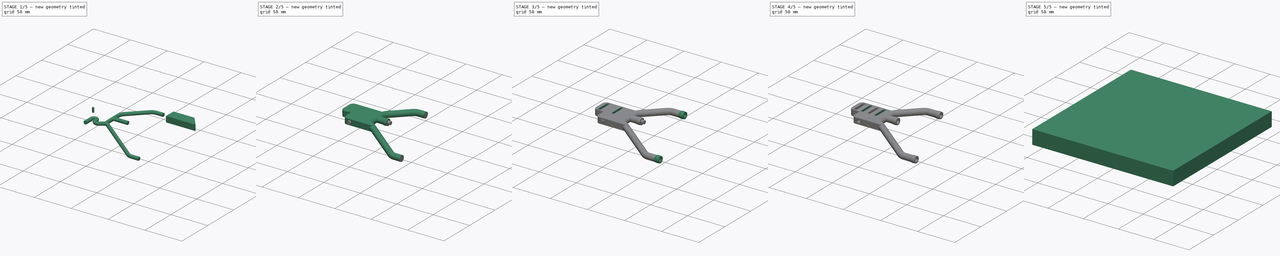
[diagram: build sequence overview — one tinted view per stage of 5, left to right]
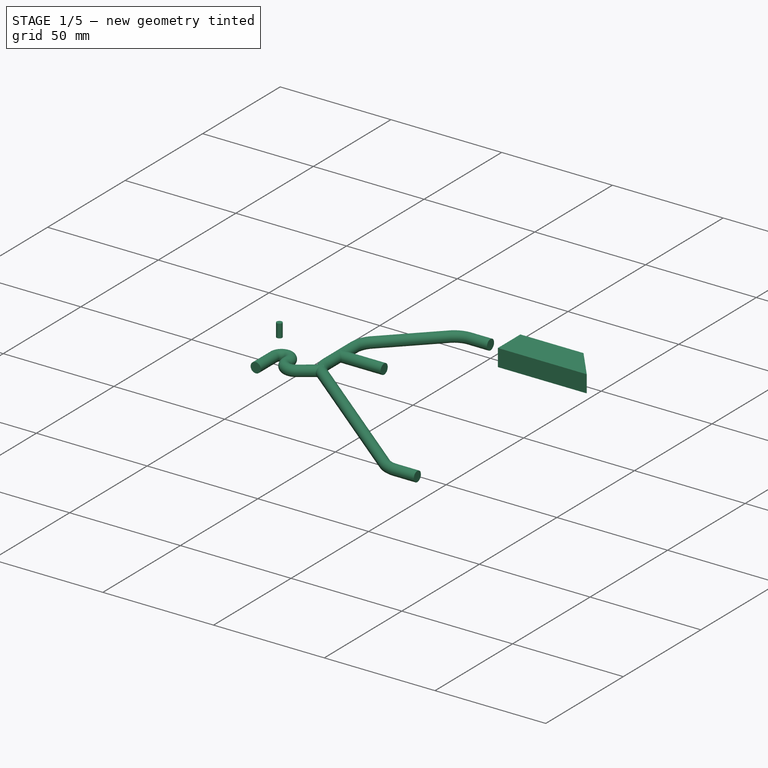
[diagram: stage 1 of 5 — iso view after this stage's code; geometry added in this stage tinted green]
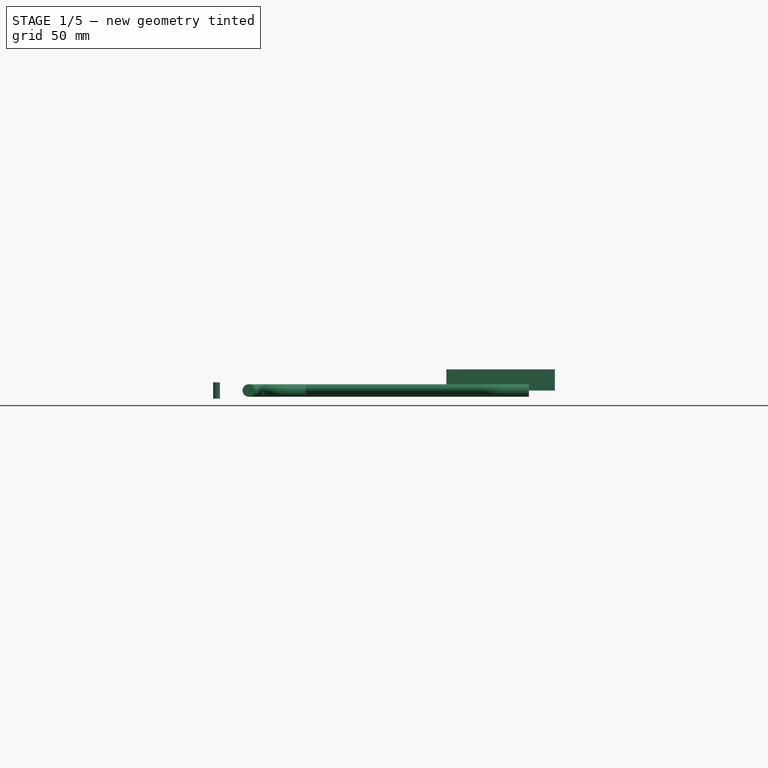
[diagram: stage 1 of 5 — front view after this stage's code; geometry added in this stage tinted green]
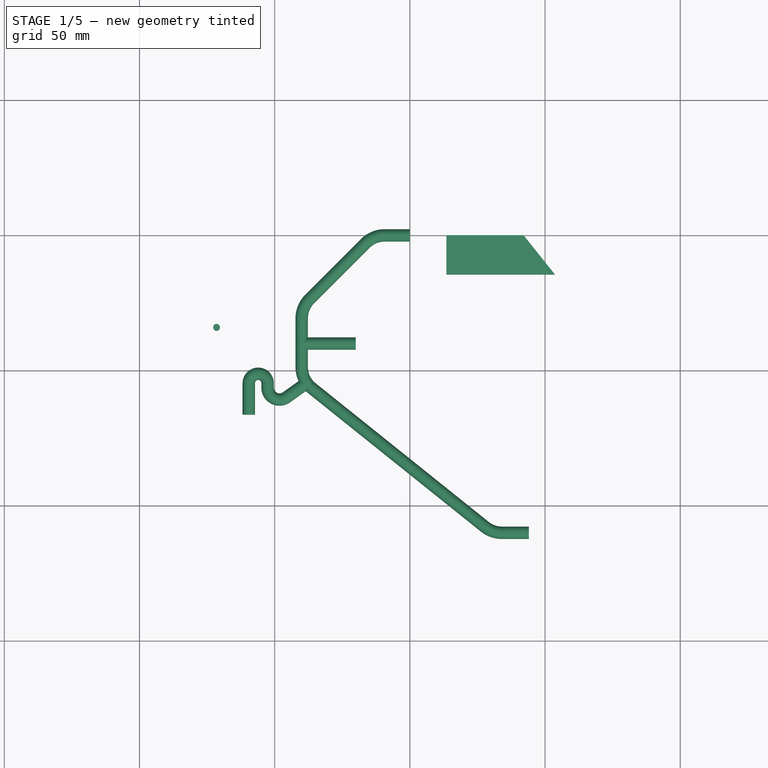
[diagram: stage 1 of 5 — top view after this stage's code; geometry added in this stage tinted green]
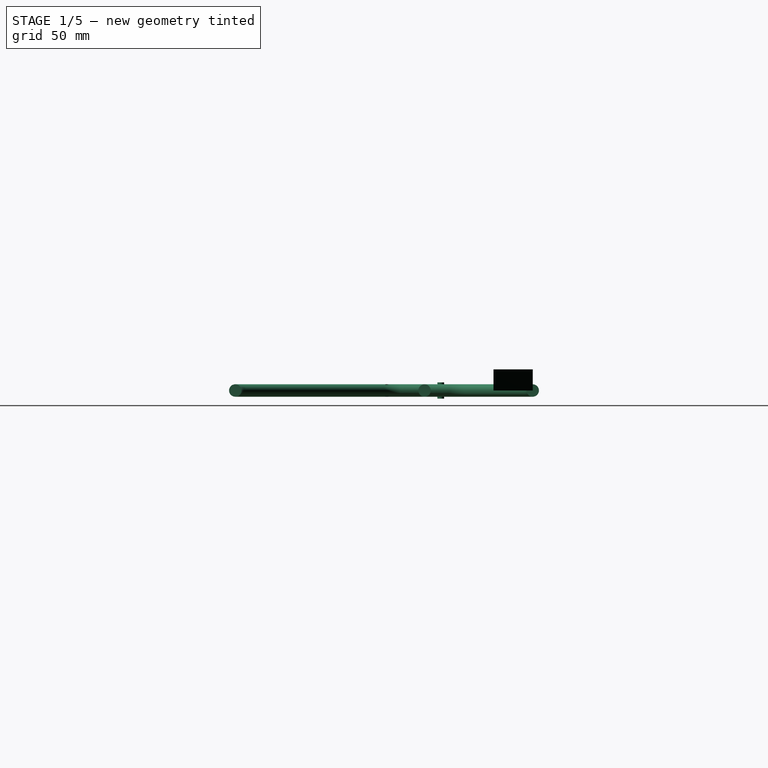
[diagram: stage 1 of 5 — right view after this stage's code; geometry added in this stage tinted green]
FCSTD DOCUMENT  (FreeCAD 0.18R4 (GitTag))
Label: new_my_track_ir_v2
License: CreativeCommons Attribution-ShareAlike
LicenseURL: http://creativecommons.org/licenses/by-sa/4.0/
objects: Sketcher::SketchObject×15, Part::Cut×11, Part::Cylinder×7, Part::MultiFuse×7, PartDesign::Body×5, Part::Box×5, Part::Feature×4, PartDesign::Revolution×3, Part::Sweep×3, Part::Fillet×3, Part::FeaturePython×3, Part::Extrusion×1, App::DocumentObjectGroup×1
note: 70 computed .brp shape members not serialized (recipe doc carries the construction recipe); baked Part::Feature solids carry a one-line shape summary decoded from their .brp

FEATURE [Part::Box] Box003  label="Cube003"
  AttacherType = Attacher::AttachEngine3D
  Height = 7.8
  Length = 38
  Placement = pos=(42,0,0) rot=(0,0,-1;0.895354rad)
  Width = 22.5
FEATURE [Part::Box] Box002  label="Cube002"
  AttacherType = Attacher::AttachEngine3D
  Height = 7.8
  Length = 47
  Placement = pos=(13.5,-14.5,0) rot=(0,0,1;0rad)
  Width = 14.5
FEATURE [Part::Cut] Cut005
  Base = -> Box002
  Tool = -> Box003
FEATURE [Sketcher::SketchObject] Sketch008  label="tubo_bloque"
  MapMode = 5
  Placement = pos=(0,0,0) rot=(1,0,0;1.5708rad)
  Support = -> [XZ_Plane005]
  sketch-geometry (1):
    g0: Circle CenterX=-61 CenterY=0 CenterZ=0 NormalX=0 NormalY=0 NormalZ=1 AngleXU=0 Radius=1.6
  constraints (2):
    c: PointOnObject(g0,g-1)
    c: Radius(g0) = 1.6
FEATURE [Sketcher::SketchObject] Sketch007  label="trayectoria_bloque"
  MapMode = 5
  Support = -> [XY_Plane005]
  sketch-geometry (5):
    g0: LineSegment StartX=-61.2464 StartY=-3.45675 StartZ=0 EndX=-61.2464 EndY=7.74325 EndZ=0
    g1: LineSegment StartX=-52.4464 StartY=7.24325 StartZ=0 EndX=-52.4464 EndY=7.74325 EndZ=0
    g2: ArcOfCircle CenterX=-56.8464 CenterY=7.74325 CenterZ=0 NormalX=0 NormalY=0 NormalZ=1 AngleXU=0 Radius=4.4 StartAngle=0 EndAngle=3.14159
    g3: ArcOfCircle CenterX=-48.0464 CenterY=7.24325 CenterZ=0 NormalX=0 NormalY=0 NormalZ=1 AngleXU=0 Radius=4.4 StartAngle=3.14159 EndAngle=5.1589
    g4: LineSegment [constr] StartX=-46.1464 StartY=3.27462 StartZ=0 EndX=-33.5553 EndY=3.27462 EndZ=0
  constraints (14):
    c: Vertical(g0)
    c: Vertical(g1)
    c: Coincident(g2,g1)
    c: Radius(g2) = 4.4
    c: Coincident(g0,g2)
    c: DistanceY(g0,g1) = 0
    c: DistanceY(g0,g2) = 0
    c: Radius(g3) = 4.4
    c: Tangent(g3,g1) = 1.5708
    c: DistanceY(g1,g1) = 0.5
    c: DistanceX(g1,g3) = 6.3
    c: Coincident(g4,g3)
    c: Horizontal(g4)
    c: DistanceY(g0,g0) = 11.2
FEATURE [PartDesign::Body] Body008
  Group = -> [Sketch007,Sketch008]
  Origin = -> Origin005
FEATURE [Sketcher::SketchObject] Sketch009  label="trayectoria_bloque001"
  ExternalGeometry = -> [Sketch001]
  MapMode = 5
  Support = -> [XY_Plane001]
  sketch-geometry (5):
    g0: ArcOfCircle CenterX=-56.1035 CenterY=-54.6759 CenterZ=0 NormalX=0 NormalY=0 NormalZ=1 AngleXU=0 Radius=3.47958 StartAngle=-9e-16 EndAngle=3.14159
    g1: LineSegment StartX=-37.3587 StartY=-53.9759 StartZ=0 EndX=-45.6666 EndY=-59.9096 EndZ=0
    g2: LineSegment StartX=-52.6239 StartY=-54.6759 StartZ=0 EndX=-52.6239 EndY=-56.3291 EndZ=0
    g3: ArcOfCircle CenterX=-48.2239 CenterY=-56.3291 CenterZ=0 NormalX=0 NormalY=0 NormalZ=1 AngleXU=0 Radius=4.4 StartAngle=3.14159 EndAngle=5.3326
    g4: LineSegment StartX=-59.5831 StartY=-66.2921 StartZ=0 EndX=-59.5831 EndY=-54.6759 EndZ=0
  constraints (9):
    c: Vertical(g2)
    c: DistanceY(g0,g1) = 0.7
    c: Perpendicular(g-3,g1)
    c: Tangent(g3,g1) = 1.5708
    c: Radius(g3) = 4.4
    c: Tangent(g2,g0) = 1.5708
    c: Vertical(g4)
    c: Tangent(g4,g0) = 1.5708
    c: Tangent(g2,g3) = -1.5708
FEATURE [PartDesign::Body] Body001
  Group = -> [Sketch001,Sketch002,Sketch003,Sketch009]
  Origin = -> Origin001
FEATURE [Sketcher::SketchObject] Sketch012  label="circulo_interno001"
  MapMode = 5
  Placement = pos=(0,0,0) rot=(0.57735,0.57735,0.57735;2.0944rad)
  Support = -> [YZ_Plane006]
  sketch-geometry (1):
    g0: Circle CenterX=0 CenterY=0 CenterZ=0 NormalX=0 NormalY=0 NormalZ=1 AngleXU=0 Radius=2.3
  constraints (2):
    c: Coincident(g0,g-1)
    c: Radius(g0) = 2.3
FEATURE [Sketcher::SketchObject] Sketch013  label="trayectoria001"
  MapMode = 5
  Support = -> [XY_Plane006]
  sketch-geometry (10):
    g0: LineSegment StartX=-40 StartY=-30.63 StartZ=0 EndX=-40 EndY=-40 EndZ=0
    g1: LineSegment StartX=-40 StartY=-40 StartZ=0 EndX=-40 EndY=-48.72 EndZ=0
    g2: LineSegment StartX=0 StartY=0 StartZ=0 EndX=-9.37 EndY=-0.00106787 EndZ=0
    g3: LineSegment StartX=34.01 StartY=-110 StartZ=0 EndX=44 EndY=-110 EndZ=0
    g4: LineSegment StartX=-16.44 StartY=-2.93 StartZ=0 EndX=-37.07 EndY=-23.56 EndZ=0
    g5: LineSegment StartX=-36.25 StartY=-56.5263 StartZ=0 EndX=27.75 EndY=-107.8 EndZ=0
    g6: ArcOfCircle CenterX=-9.36893 CenterY=-10.0011 CenterZ=0 NormalX=0 NormalY=0 NormalZ=1 AngleXU=0 Radius=10 StartAngle=1.5709 EndAngle=2.35619
    g7: ArcOfCircle CenterX=-30 CenterY=-30.6321 CenterZ=0 NormalX=0 NormalY=0 NormalZ=1 AngleXU=0 Radius=10 StartAngle=2.35604 EndAngle=3.14138
    g8: ArcOfCircle CenterX=-30 CenterY=-48.7201 CenterZ=0 NormalX=0 NormalY=0 NormalZ=1 AngleXU=0 Radius=10 StartAngle=3.14158 EndAngle=4.03726
    g9: ArcOfCircle CenterX=34.0078 CenterY=-100 CenterZ=0 NormalX=0 NormalY=0 NormalZ=1 AngleXU=0 Radius=10 StartAngle=4.03626 EndAngle=4.71261
  constraints (34):
    c: Vertical(g0)
    c: DistanceX(g0,g-1) = 40
    c: DistanceY(g0,g-1) = 40
    c: Vertical(g1)
    c: Coincident(g0,g1)
    c: Coincident(g2,g-1)
    c: Horizontal(g3)
    c: DistanceX(g-1,g3) = 44
    c: DistanceY(g3,g-1) = 110
    c: Angle(g4,g-1) = 2.35619
    c: Angle(g5,g1) = 2.24624
    c: Radius(g6) = 10
    c: Tangent(g6,g4,g6) = -1.5708
    c: Coincident(g4,g6)
    c: Coincident(g2,g6)
    c: DistanceX(g2,g2) = 9.37
    c: DistanceX(g4,g2) = 7.07
    c: Radius(g7) = 10
    c: Coincident(g4,g7)
    c: Coincident(g0,g7)
    c: DistanceX(g0,g4) = 2.93
    c: DistanceY(g0,g4) = 7.07
    c: DistanceY(g0,g4) = 16.44
    c: Radius(g8) = 10
    c: Coincident(g1,g8)
    c: Coincident(g5,g8)
    c: DistanceY(g1,g0) = 8.72
    c: DistanceX(g1,g5) = 3.75
    c: Radius(g9) = 10
    c: Coincident(g5,g9)
    c: Coincident(g3,g9)
    c: DistanceX(g3,g3) = 9.99
    c: DistanceY(g3,g5) = 2.2
    c: DistanceX(g5,g3) = 6.26
FEATURE [Part::Sweep] Sweep003  label="tubo_fino_2"
  Frenet = false
  Sections = -> [Sketch012]
  Solid = true
  Spine = -> Sketch013
  Transition = 1
FEATURE [Part::Cylinder] Cylinder001  label="tubito_fino_medio"
  Angle = 360
  AttacherType = Attacher::AttachEngine3D
  Height = 20
  Placement = pos=(-40,-40,0) rot=(0,1,0;1.5708rad)
  Radius = 2.3
FEATURE [Sketcher::SketchObject] Sketch019  label="circulo_interno_bloque"
  MapMode = 7
  Placement = pos=(-59.5831,-66.2921,0) rot=(1,0,0;1.5708rad)
  Support = -> [Sketch009]
  sketch-geometry (1):
    g0: Circle CenterX=0 CenterY=0 CenterZ=0 NormalX=0 NormalY=0 NormalZ=1 AngleXU=0 Radius=2.3
  constraints (2):
    c: Coincident(g0,g-1)
    c: Radius(g0) = 2.3
FEATURE [Part::Sweep] Sweep004  label="tubo_interno_chico_bloque"
  Frenet = false
  Sections = -> [Sketch019]
  Solid = true
  Spine = -> Sketch009
  Transition = 1
FEATURE [Part::MultiFuse] Fusion006002005  label="tubos_internos_3_de_4_6_mm"
  Shapes = -> [Sweep004,Cylinder001,Sweep003]
FEATURE [Part::Cylinder] Cylinder002  label="Cylinder001"
  Angle = 360
  AttacherType = Attacher::AttachEngine3D
  Height = 6
  Placement = pos=(-71.5,-34,-3) rot=(0,0,1;0rad)
  Radius = 1.25
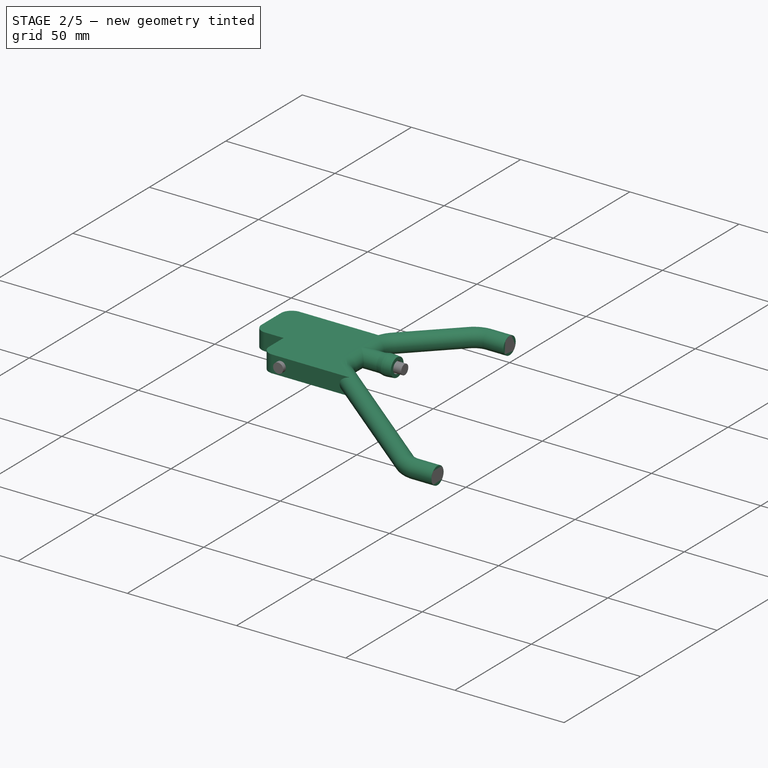
[diagram: stage 2 of 5 — iso view after this stage's code; geometry added in this stage tinted green]
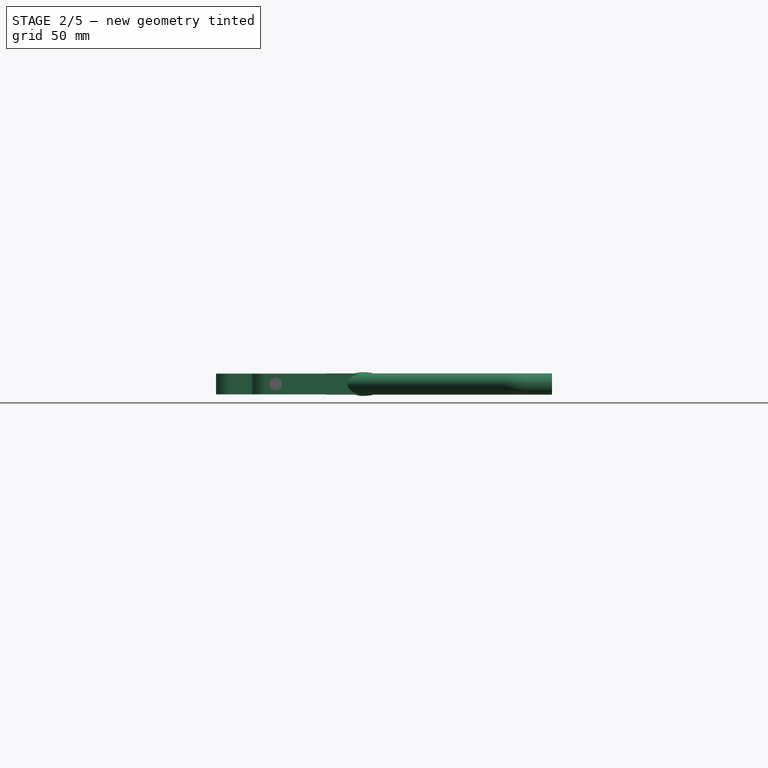
[diagram: stage 2 of 5 — front view after this stage's code; geometry added in this stage tinted green]
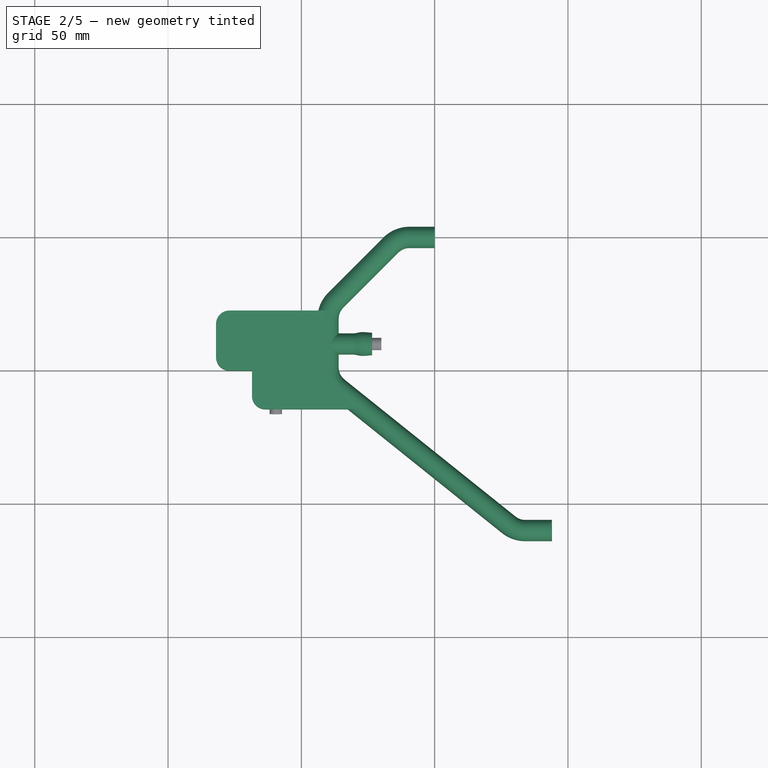
[diagram: stage 2 of 5 — top view after this stage's code; geometry added in this stage tinted green]
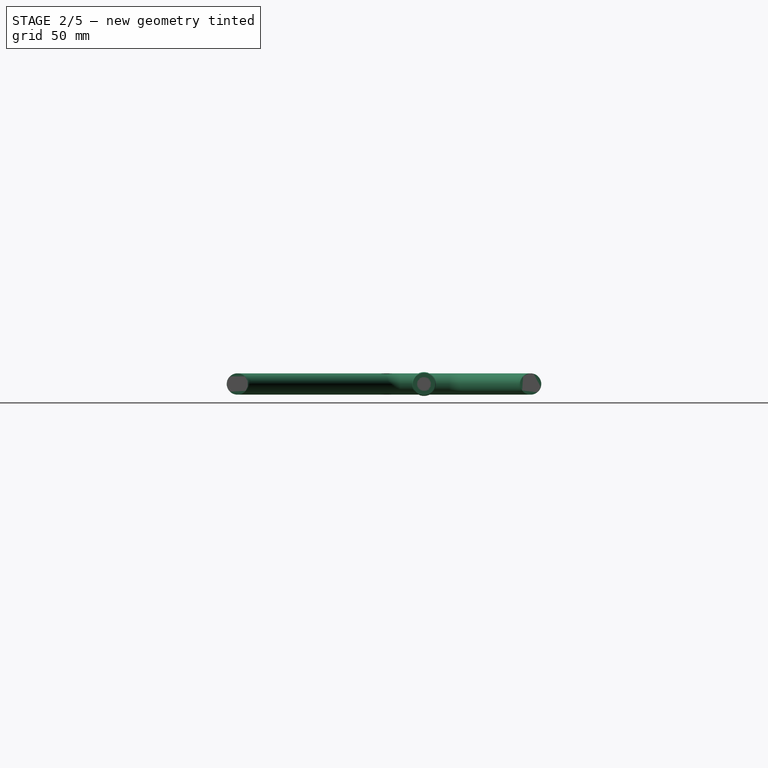
[diagram: stage 2 of 5 — right view after this stage's code; geometry added in this stage tinted green]
FEATURE [Sketcher::SketchObject] Sketch003  label="circulo_interno"
  MapMode = 5
  Placement = pos=(0,0,0) rot=(0.57735,0.57735,0.57735;2.0944rad)
  Support = -> [YZ_Plane001]
  sketch-geometry (1):
    g0: Circle CenterX=0 CenterY=0 CenterZ=0 NormalX=0 NormalY=0 NormalZ=1 AngleXU=0 Radius=2.3
  constraints (2):
    c: Coincident(g0,g-1)
    c: Radius(g0) = 2.3
FEATURE [Sketcher::SketchObject] Sketch001  label="trayectoria"
  MapMode = 5
  Support = -> [XY_Plane001]
  sketch-geometry (10):
    g0: LineSegment StartX=-40 StartY=-30.63 StartZ=0 EndX=-40 EndY=-40 EndZ=0
    g1: LineSegment StartX=-40 StartY=-40 StartZ=0 EndX=-40 EndY=-48.72 EndZ=0
    g2: LineSegment StartX=0 StartY=0 StartZ=0 EndX=-9.37 EndY=-0.00106787 EndZ=0
    g3: LineSegment StartX=34.01 StartY=-110 StartZ=0 EndX=44 EndY=-110 EndZ=0
    g4: LineSegment StartX=-16.44 StartY=-2.93 StartZ=0 EndX=-37.07 EndY=-23.56 EndZ=0
    g5: LineSegment StartX=-36.25 StartY=-56.5263 StartZ=0 EndX=27.75 EndY=-107.8 EndZ=0
    g6: ArcOfCircle CenterX=-9.36893 CenterY=-10.0011 CenterZ=0 NormalX=0 NormalY=0 NormalZ=1 AngleXU=0 Radius=10 StartAngle=1.5709 EndAngle=2.35619
    g7: ArcOfCircle CenterX=-30 CenterY=-30.6321 CenterZ=0 NormalX=0 NormalY=0 NormalZ=1 AngleXU=0 Radius=10 StartAngle=2.35604 EndAngle=3.14138
    g8: ArcOfCircle CenterX=-30 CenterY=-48.7201 CenterZ=0 NormalX=0 NormalY=0 NormalZ=1 AngleXU=0 Radius=10 StartAngle=3.14158 EndAngle=4.03726
    g9: ArcOfCircle CenterX=34.0078 CenterY=-100 CenterZ=0 NormalX=0 NormalY=0 NormalZ=1 AngleXU=0 Radius=10 StartAngle=4.03626 EndAngle=4.71261
  constraints (34):
    c: Vertical(g0)
    c: DistanceX(g0,g-1) = 40
    c: DistanceY(g0,g-1) = 40
    c: Vertical(g1)
    c: Coincident(g0,g1)
    c: Coincident(g2,g-1)
    c: Horizontal(g3)
    c: DistanceX(g-1,g3) = 44
    c: DistanceY(g3,g-1) = 110
    c: Angle(g4,g-1) = 2.35619
    c: Angle(g5,g1) = 2.24624
    c: Radius(g6) = 10
    c: Tangent(g6,g4,g6) = -1.5708
    c: Coincident(g4,g6)
    c: Coincident(g2,g6)
    c: DistanceX(g2,g2) = 9.37
    c: DistanceX(g4,g2) = 7.07
    c: Radius(g7) = 10
    c: Coincident(g4,g7)
    c: Coincident(g0,g7)
    c: DistanceX(g0,g4) = 2.93
    c: DistanceY(g0,g4) = 7.07
    c: DistanceY(g0,g4) = 16.44
    c: Radius(g8) = 10
    c: Coincident(g1,g8)
    c: Coincident(g5,g8)
    c: DistanceY(g1,g0) = 8.72
    c: DistanceX(g1,g5) = 3.75
    c: Radius(g9) = 10
    c: Coincident(g5,g9)
    c: Coincident(g3,g9)
    c: DistanceX(g3,g3) = 9.99
    c: DistanceY(g3,g5) = 2.2
    c: DistanceX(g5,g3) = 6.26
FEATURE [PartDesign::Body] Body  label="cabezal1"
  Group = -> [Sketch,Revolution]
  Origin = -> Origin
  Placement = pos=(-4,0,0) rot=(0,0,1;0rad)
  Tip = -> Revolution
FEATURE [Part::Sweep] Sweep  label="tubo_grueso"
  Frenet = false
  Sections = -> [Sketch002]
  Solid = true
  Spine = -> Sketch001
  Transition = 1
FEATURE [Sketcher::SketchObject] Sketch004
  MapMode = 5
  Support = -> [XY_Plane002]
  sketch-geometry (11):
    g0: LineSegment StartX=0 StartY=2.3 StartZ=0 EndX=6.25 EndY=2.3 EndZ=0
    g1: LineSegment StartX=6.25 StartY=2.3 StartZ=0 EndX=6.25 EndY=3.2 EndZ=0
    g2: LineSegment StartX=6.25 StartY=3.2 StartZ=0 EndX=7.55 EndY=3.2 EndZ=0
    g3: LineSegment StartX=7.55 StartY=3.2 StartZ=0 EndX=7.55 EndY=2.65 EndZ=0
    g4: LineSegment StartX=7.55 StartY=2.65 StartZ=0 EndX=10.55 EndY=2.65 EndZ=0
    g5: LineSegment StartX=10.55 StartY=2.65 StartZ=0 EndX=10.55 EndY=4.2 EndZ=0
    g6: LineSegment StartX=10.55 StartY=4.2 StartZ=0 EndX=7.55 EndY=4.47 EndZ=0
    g7: LineSegment StartX=7.55 StartY=4.47 StartZ=0 EndX=6.25 EndY=4.47 EndZ=0
    g8: LineSegment StartX=6.25 StartY=4.47 StartZ=0 EndX=1.25 EndY=3.47 EndZ=0
    g9: LineSegment StartX=1.25 StartY=3.47 StartZ=0 EndX=0 EndY=3.47 EndZ=0
    g10: LineSegment StartX=0 StartY=3.47 StartZ=0 EndX=0 EndY=2.3 EndZ=0
  constraints (33):
    c: PointOnObject(g0,g-2)
    c: Horizontal(g0)
    c: DistanceX(g0,g0) = 6.25
    c: DistanceY(g-1,g0) = 2.3
    c: Coincident(g1,g0)
    c: Vertical(g1)
    c: DistanceY(g1,g1) = 0.9
    c: Coincident(g2,g1)
    c: Horizontal(g2)
    c: DistanceX(g2,g2) = 1.3
    c: Coincident(g3,g2)
    c: Vertical(g3)
    c: DistanceY(g3,g3) = 0.55
    c: Horizontal(g4)
    c: DistanceX(g4,g4) = 3
    c: Coincident(g3,g4)
    c: Coincident(g5,g4)
    c: Vertical(g5)
    c: DistanceY(g5,g5) = 1.55
    c: Coincident(g6,g5)
    c: DistanceX(g6,g5) = 3
    c: DistanceY(g5,g6) = 0.27
    c: Coincident(g7,g6)
    c: Horizontal(g7)
    c: DistanceX(g7,g7) = 1.3
    c: Coincident(g8,g7)
    c: DistanceX(g8,g8) = 5
    c: DistanceY(g8,g8) = 1
    c: Coincident(g9,g8)
    c: PointOnObject(g9,g-2)
    c: Horizontal(g9)
    c: Coincident(g10,g9)
    c: Coincident(g10,g0)
FEATURE [PartDesign::Revolution] Revolution001
  Angle = 360
  Axis = (1,0,0)
  Base = (0,0,0)
  Profile = -> Sketch004
  ReferenceAxis = -> X_Axis002
FEATURE [PartDesign::Body] Body003  label="cabezal003"
  Group = -> [Sketch005,Revolution002]
  Origin = -> Origin003
  Placement = pos=(40,-110,0) rot=(0,0,1;0rad)
  Tip = -> Revolution002
FEATURE [Part::Cylinder] Cylinder
  Angle = 360
  AttacherType = Attacher::AttachEngine3D
  Height = 10
  Placement = pos=(-39.98,-40,0) rot=(0,1,0;1.5708rad)
  Radius = 3.99
FEATURE [Part::MultiFuse] Fusion
  Shapes = -> [Body002,Cylinder]
FEATURE [Part::Box] Box004  label="Cube004"
  AttacherType = Attacher::AttachEngine3D
  Height = 7.8
  Length = 42
  Width = 22.5
FEATURE [Part::Fillet] Fillet
  Base = -> Box004
  Edges = 1 edges r=5: [Edge3]
FEATURE [Part::Fillet] Fillet001
  Base = -> Fillet
  Edges = 1 edges r=5: [Edge3]
FEATURE [Part::Fillet] Fillet002
  Base = -> Cut005
  Edges = 1 edges r=5: [Edge1]
FEATURE [Part::MultiFuse] Fusion007  label="bloque"
  Placement = pos=(-82,-50,-3.9) rot=(0,0,1;0rad)
  Shapes = -> [Fillet001,Fillet002]
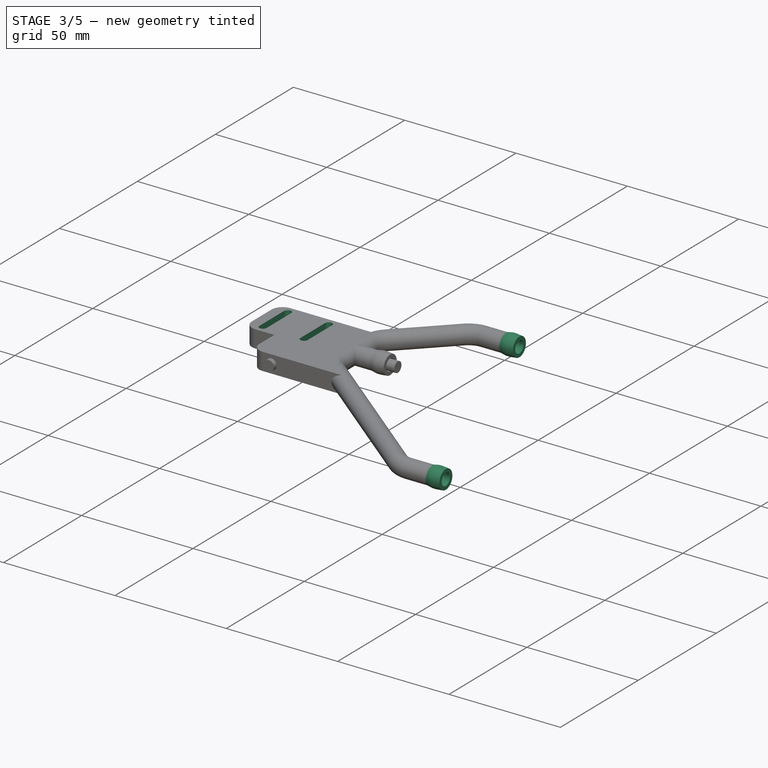
[diagram: stage 3 of 5 — iso view after this stage's code; geometry added in this stage tinted green]
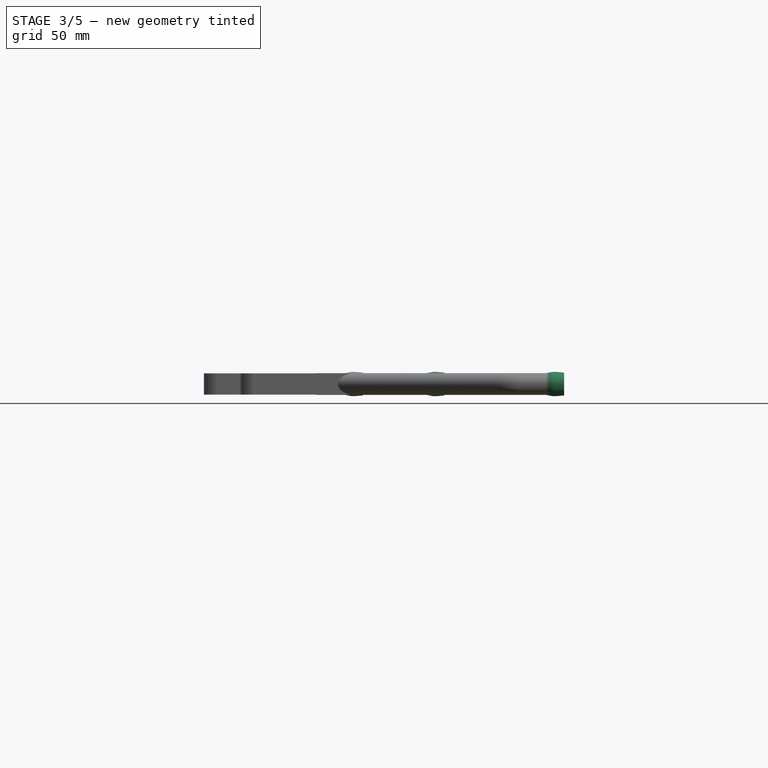
[diagram: stage 3 of 5 — front view after this stage's code; geometry added in this stage tinted green]
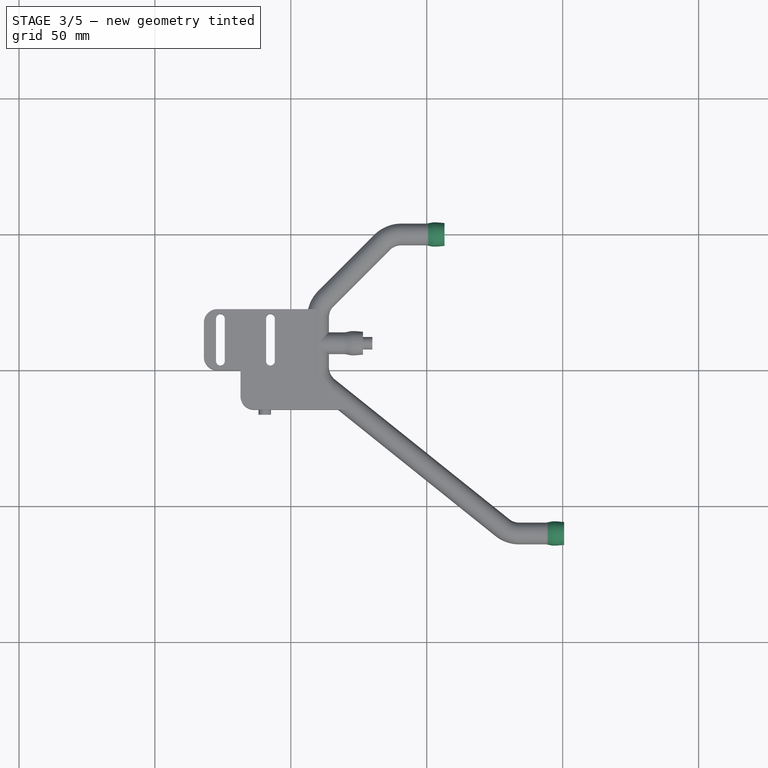
[diagram: stage 3 of 5 — top view after this stage's code; geometry added in this stage tinted green]
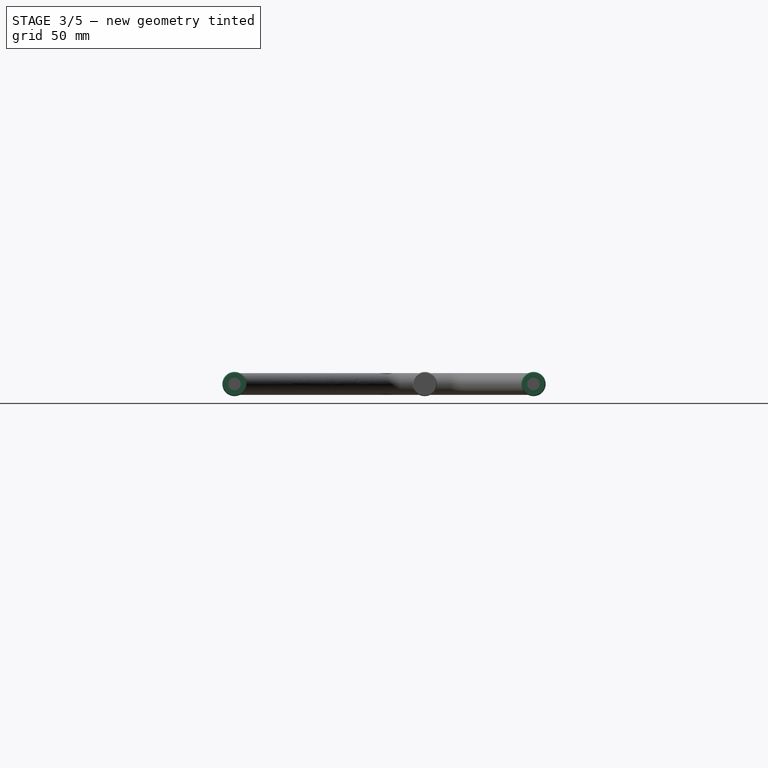
[diagram: stage 3 of 5 — right view after this stage's code; geometry added in this stage tinted green]
FEATURE [Sketcher::SketchObject] Sketch
  MapMode = 5
  Support = -> [XY_Plane]
  sketch-geometry (11):
    g0: LineSegment StartX=0 StartY=2.3 StartZ=0 EndX=6.25 EndY=2.3 EndZ=0
    g1: LineSegment StartX=6.25 StartY=2.3 StartZ=0 EndX=6.25 EndY=3.2 EndZ=0
    g2: LineSegment StartX=6.25 StartY=3.2 StartZ=0 EndX=7.55 EndY=3.2 EndZ=0
    g3: LineSegment StartX=7.55 StartY=3.2 StartZ=0 EndX=7.55 EndY=2.65 EndZ=0
    g4: LineSegment StartX=7.55 StartY=2.65 StartZ=0 EndX=10.55 EndY=2.65 EndZ=0
    g5: LineSegment StartX=10.55 StartY=2.65 StartZ=0 EndX=10.55 EndY=4.2 EndZ=0
    g6: LineSegment StartX=10.55 StartY=4.2 StartZ=0 EndX=7.55 EndY=4.47 EndZ=0
    g7: LineSegment StartX=7.55 StartY=4.47 StartZ=0 EndX=6.25 EndY=4.47 EndZ=0
    g8: LineSegment StartX=6.25 StartY=4.47 StartZ=0 EndX=1.25 EndY=3.47 EndZ=0
    g9: LineSegment StartX=1.25 StartY=3.47 StartZ=0 EndX=0 EndY=3.47 EndZ=0
    g10: LineSegment StartX=0 StartY=3.47 StartZ=0 EndX=0 EndY=2.3 EndZ=0
  constraints (33):
    c: PointOnObject(g0,g-2)
    c: Horizontal(g0)
    c: DistanceX(g0,g0) = 6.25
    c: DistanceY(g-1,g0) = 2.3
    c: Coincident(g1,g0)
    c: Vertical(g1)
    c: DistanceY(g1,g1) = 0.9
    c: Coincident(g2,g1)
    c: Horizontal(g2)
    c: DistanceX(g2,g2) = 1.3
    c: Coincident(g3,g2)
    c: Vertical(g3)
    c: DistanceY(g3,g3) = 0.55
    c: Horizontal(g4)
    c: DistanceX(g4,g4) = 3
    c: Coincident(g3,g4)
    c: Coincident(g5,g4)
    c: Vertical(g5)
    c: DistanceY(g5,g5) = 1.55
    c: Coincident(g6,g5)
    c: DistanceX(g6,g5) = 3
    c: DistanceY(g5,g6) = 0.27
    c: Coincident(g7,g6)
    c: Horizontal(g7)
    c: DistanceX(g7,g7) = 1.3
    c: Coincident(g8,g7)
    c: DistanceX(g8,g8) = 5
    c: DistanceY(g8,g8) = 1
    c: Coincident(g9,g8)
    c: PointOnObject(g9,g-2)
    c: Horizontal(g9)
    c: Coincident(g10,g9)
    c: Coincident(g10,g0)
FEATURE [Sketcher::SketchObject] Sketch002  label="circulo_externo"
  MapMode = 5
  Placement = pos=(0,0,0) rot=(0.57735,0.57735,0.57735;2.0944rad)
  Support = -> [YZ_Plane001]
  sketch-geometry (1):
    g0: Circle CenterX=0 CenterY=0 CenterZ=0 NormalX=0 NormalY=0 NormalZ=1 AngleXU=0 Radius=4
  constraints (2):
    c: Coincident(g0,g-1)
    c: Radius(g0) = 4
FEATURE [PartDesign::Revolution] Revolution
  Angle = 360
  Axis = (1,0,0)
  Base = (0,0,0)
  Profile = -> Sketch
  ReferenceAxis = -> X_Axis
FEATURE [PartDesign::Body] Body002  label="cabezal002"
  Group = -> [Sketch004,Revolution001]
  Origin = -> Origin002
  Placement = pos=(-34,-40,0) rot=(0,0,1;0rad)
  Tip = -> Revolution001
FEATURE [Sketcher::SketchObject] Sketch005
  MapMode = 5
  Support = -> [XY_Plane003]
  sketch-geometry (11):
    g0: LineSegment StartX=0 StartY=2.3 StartZ=0 EndX=6.25 EndY=2.3 EndZ=0
    g1: LineSegment StartX=6.25 StartY=2.3 StartZ=0 EndX=6.25 EndY=3.2 EndZ=0
    g2: LineSegment StartX=6.25 StartY=3.2 StartZ=0 EndX=7.55 EndY=3.2 EndZ=0
    g3: LineSegment StartX=7.55 StartY=3.2 StartZ=0 EndX=7.55 EndY=2.65 EndZ=0
    g4: LineSegment StartX=7.55 StartY=2.65 StartZ=0 EndX=10.55 EndY=2.65 EndZ=0
    g5: LineSegment StartX=10.55 StartY=2.65 StartZ=0 EndX=10.55 EndY=4.2 EndZ=0
    g6: LineSegment StartX=10.55 StartY=4.2 StartZ=0 EndX=7.55 EndY=4.47 EndZ=0
    g7: LineSegment StartX=7.55 StartY=4.47 StartZ=0 EndX=6.25 EndY=4.47 EndZ=0
    g8: LineSegment StartX=6.25 StartY=4.47 StartZ=0 EndX=1.25 EndY=3.47 EndZ=0
    g9: LineSegment StartX=1.25 StartY=3.47 StartZ=0 EndX=0 EndY=3.47 EndZ=0
    g10: LineSegment StartX=0 StartY=3.47 StartZ=0 EndX=0 EndY=2.3 EndZ=0
  constraints (33):
    c: PointOnObject(g0,g-2)
    c: Horizontal(g0)
    c: DistanceX(g0,g0) = 6.25
    c: DistanceY(g-1,g0) = 2.3
    c: Coincident(g1,g0)
    c: Vertical(g1)
    c: DistanceY(g1,g1) = 0.9
    c: Coincident(g2,g1)
    c: Horizontal(g2)
    c: DistanceX(g2,g2) = 1.3
    c: Coincident(g3,g2)
    c: Vertical(g3)
    c: DistanceY(g3,g3) = 0.55
    c: Horizontal(g4)
    c: DistanceX(g4,g4) = 3
    c: Coincident(g3,g4)
    c: Coincident(g5,g4)
    c: Vertical(g5)
    c: DistanceY(g5,g5) = 1.55
    c: Coincident(g6,g5)
    c: DistanceX(g6,g5) = 3
    c: DistanceY(g5,g6) = 0.27
    c: Coincident(g7,g6)
    c: Horizontal(g7)
    c: DistanceX(g7,g7) = 1.3
    c: Coincident(g8,g7)
    c: DistanceX(g8,g8) = 5
    c: DistanceY(g8,g8) = 1
    c: Coincident(g9,g8)
    c: PointOnObject(g9,g-2)
    c: Horizontal(g9)
    c: Coincident(g10,g9)
    c: Coincident(g10,g0)
FEATURE [PartDesign::Revolution] Revolution002
  Angle = 360
  Axis = (1,0,0)
  Base = (0,0,0)
  Profile = -> Sketch005
  ReferenceAxis = -> X_Axis003
FEATURE [Part::MultiFuse] Fusion001
  Shapes = -> [Fusion,Sweep]
FEATURE [Part::MultiFuse] Fusion002
  Shapes = -> [Fusion001,Body003]
FEATURE [Part::MultiFuse] Fusion003  label="tubo_grueso_3_cabezas"
  Shapes = -> [Fusion002,Body]
FEATURE [Part::MultiFuse] Fusion008  label="bloque_mas_tubo_cabezales"
  Shapes = -> [Fusion003,Fusion007]
FEATURE [Part::Feature] Fusion006002001  label="pocket"
  Placement = pos=(-75.9,-46.65,-5) rot=(0,0,1;0rad)
  shape: bbox 3.2 x 19 x 10 mm, 6 faces (baked)
FEATURE [Part::Feature] Fusion006002003  label="pocket002"
  Placement = pos=(-57.5,-46.65,-5) rot=(0,0,1;0rad)
  shape: bbox 3.2 x 19 x 10 mm, 6 faces (baked)
FEATURE [Part::Feature] Fusion006002002  label="pocket001"
  Placement = pos=(-66.7,-46.65,-5) rot=(0,0,1;0rad)
  shape: bbox 3.2 x 19 x 10 mm, 6 faces (baked)
FEATURE [Part::Feature] Fusion006002004  label="pocket003"
  Placement = pos=(-48.3,-46.65,-5) rot=(0,0,1;0rad)
  shape: bbox 3.2 x 19 x 10 mm, 6 faces (baked)
FEATURE [Part::Cut] Cut
  Base = -> Fusion008
  Tool = -> Fusion006002001
FEATURE [Part::Cut] Cut008
  Base = -> Cut
  Tool = -> Fusion006002003
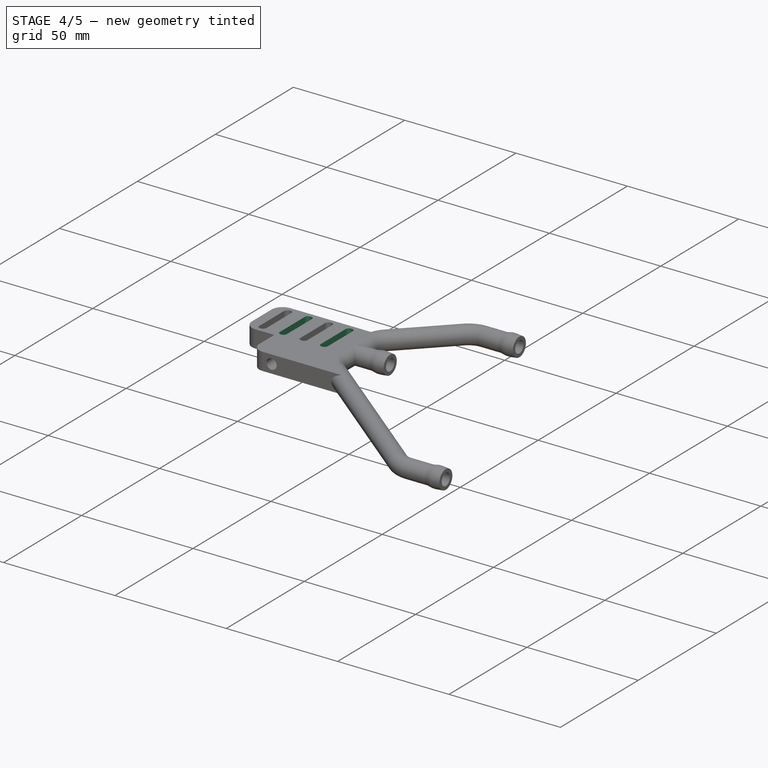
[diagram: stage 4 of 5 — iso view after this stage's code; geometry added in this stage tinted green]
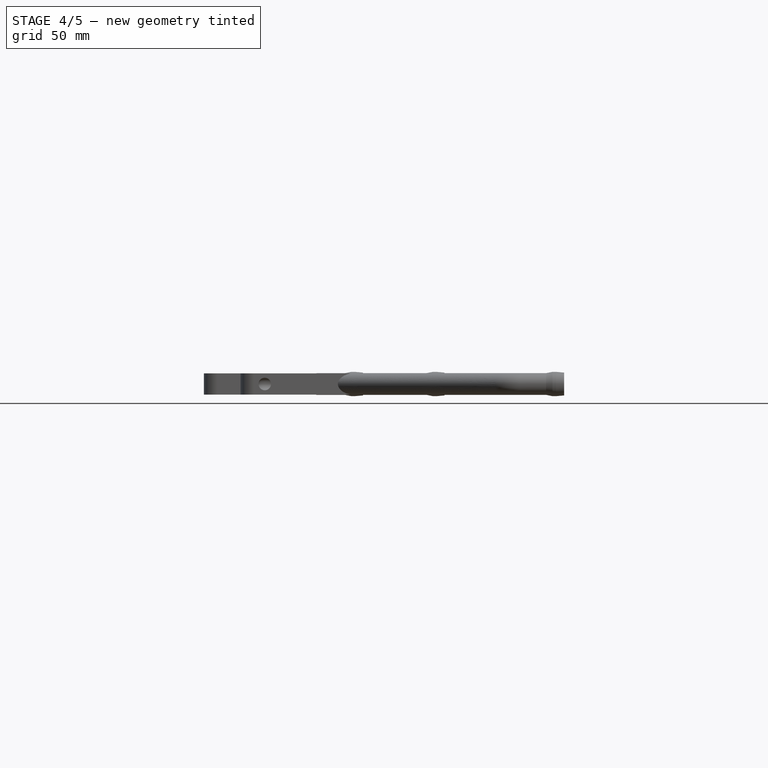
[diagram: stage 4 of 5 — front view after this stage's code; geometry added in this stage tinted green]
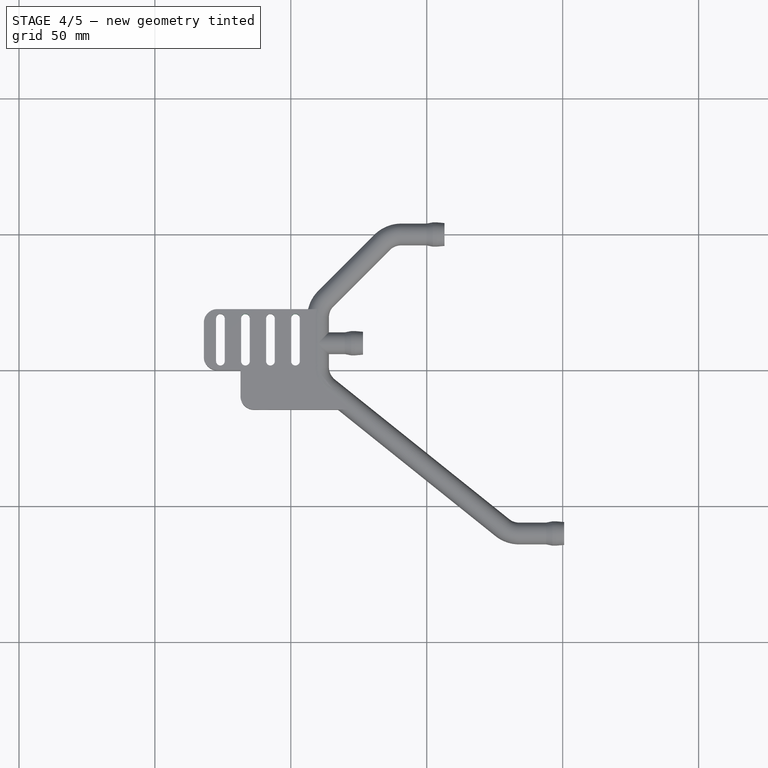
[diagram: stage 4 of 5 — top view after this stage's code; geometry added in this stage tinted green]
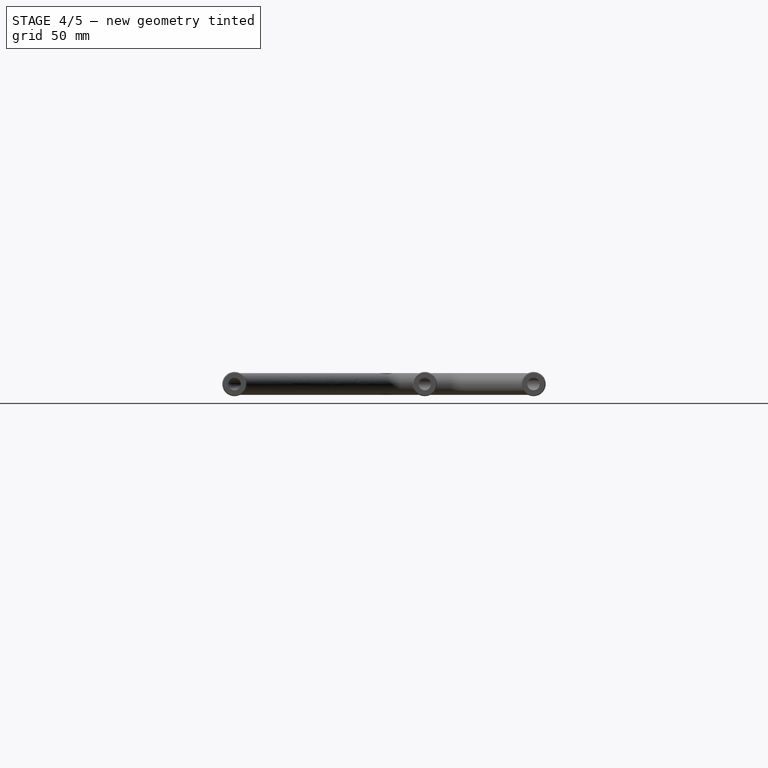
[diagram: stage 4 of 5 — right view after this stage's code; geometry added in this stage tinted green]
FEATURE [Part::Cut] Cut009
  Base = -> Cut008
  Tool = -> Fusion006002004
FEATURE [Part::Cut] Cut010  label="bloque_mas_tubo_cabezales_con_pockets"
  Base = -> Cut009
  Tool = -> Fusion006002002
FEATURE [Part::Cut] Cut011  label="bloque_mas_tubo_cabezales_con_pockets_con_agujero_interno"
  Base = -> Cut010
  Tool = -> Fusion006002005
FEATURE [Part::Cylinder] Cylinder003  label="Cylinder002"
  Angle = 360
  AttacherType = Attacher::AttachEngine3D
  Height = 6
  Placement = pos=(-71.5,-43,-3) rot=(0,0,1;0rad)
  Radius = 1.25
FEATURE [Part::Cylinder] Cylinder004  label="Cylinder003"
  Angle = 360
  AttacherType = Attacher::AttachEngine3D
  Height = 6
  Placement = pos=(-52.5,-34,-3) rot=(0,0,1;0rad)
  Radius = 1.25
FEATURE [Part::Cylinder] Cylinder005  label="Cylinder004"
  Angle = 360
  AttacherType = Attacher::AttachEngine3D
  Height = 6
  Placement = pos=(-52.5,-43,-3) rot=(0,0,1;0rad)
  Radius = 1.25
FEATURE [Part::Cut] Cut012
  Base = -> Cut011
  Tool = -> Cylinder002
FEATURE [Part::Cut] Cut013
  Base = -> Cut012
  Tool = -> Cylinder003
FEATURE [Part::Cut] Cut014
  Base = -> Cut013
  Tool = -> Cylinder005
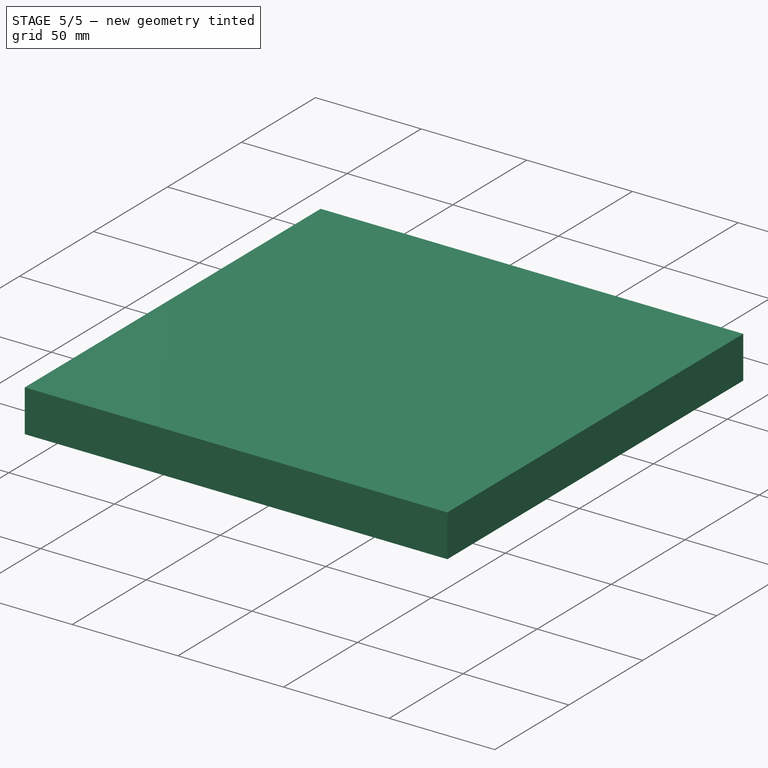
[diagram: stage 5 of 5 — iso view after this stage's code; geometry added in this stage tinted green]
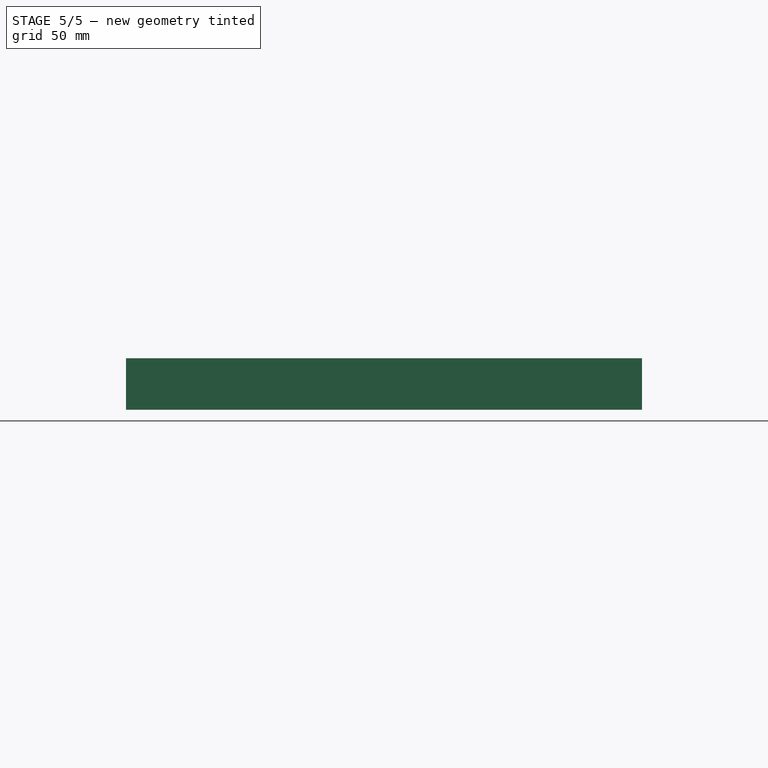
[diagram: stage 5 of 5 — front view after this stage's code; geometry added in this stage tinted green]
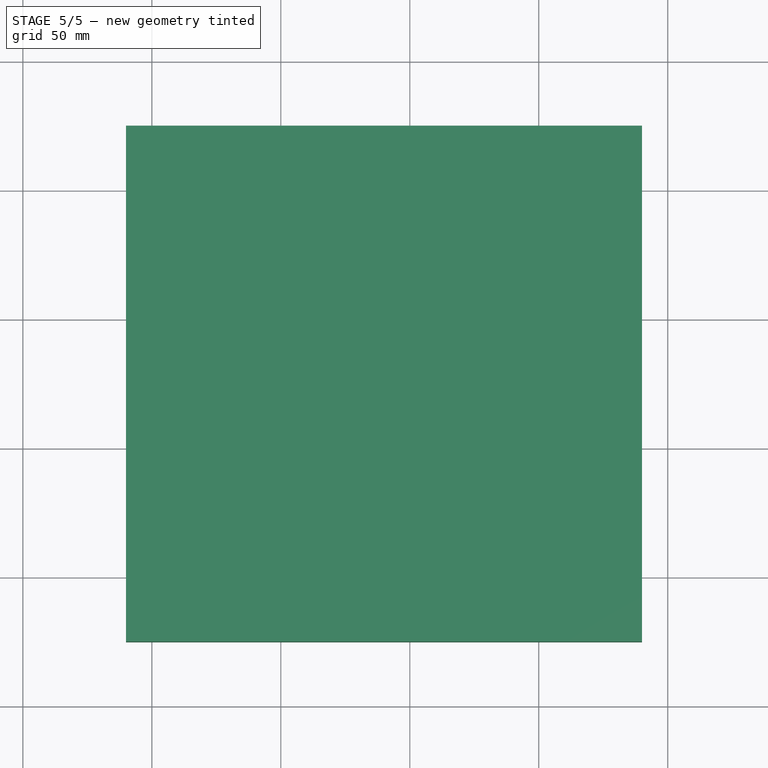
[diagram: stage 5 of 5 — top view after this stage's code; geometry added in this stage tinted green]
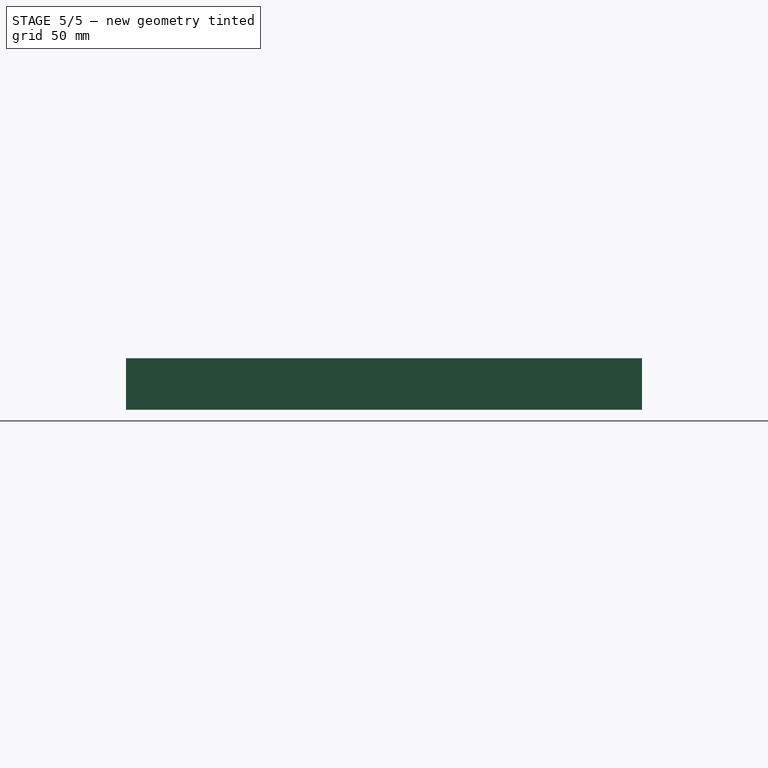
[diagram: stage 5 of 5 — right view after this stage's code; geometry added in this stage tinted green]
FEATURE [Part::Box] Box  label="cubo_cortador1"
  AttacherType = Attacher::AttachEngine3D
  Height = 10
  Length = 200
  Placement = pos=(-110,-125,0) rot=(0,0,1;0rad)
  Width = 200
FEATURE [Sketcher::SketchObject] Sketch018  label="trayectoria002"
  MapMode = 5
  Support = -> [XY_Plane008]
  sketch-geometry (10):
    g0: LineSegment StartX=-40 StartY=-30.63 StartZ=0 EndX=-40 EndY=-40 EndZ=0
    g1: LineSegment StartX=-40 StartY=-40 StartZ=0 EndX=-40 EndY=-48.72 EndZ=0
    g2: LineSegment StartX=0 StartY=0 StartZ=0 EndX=-9.37 EndY=-0.00106787 EndZ=0
    g3: LineSegment StartX=34.01 StartY=-110 StartZ=0 EndX=44 EndY=-110 EndZ=0
    g4: LineSegment StartX=-16.44 StartY=-2.93 StartZ=0 EndX=-37.07 EndY=-23.56 EndZ=0
    g5: LineSegment StartX=-36.25 StartY=-56.5263 StartZ=0 EndX=27.75 EndY=-107.8 EndZ=0
    g6: ArcOfCircle CenterX=-9.36893 CenterY=-10.0011 CenterZ=0 NormalX=0 NormalY=0 NormalZ=1 AngleXU=0 Radius=10 StartAngle=1.5709 EndAngle=2.35619
    g7: ArcOfCircle CenterX=-30 CenterY=-30.6321 CenterZ=0 NormalX=0 NormalY=0 NormalZ=1 AngleXU=0 Radius=10 StartAngle=2.35604 EndAngle=3.14138
    g8: ArcOfCircle CenterX=-30 CenterY=-48.7201 CenterZ=0 NormalX=0 NormalY=0 NormalZ=1 AngleXU=0 Radius=10 StartAngle=3.14158 EndAngle=4.03726
    g9: ArcOfCircle CenterX=34.0078 CenterY=-100 CenterZ=0 NormalX=0 NormalY=0 NormalZ=1 AngleXU=0 Radius=10 StartAngle=4.03626 EndAngle=4.71261
  constraints (34):
    c: Vertical(g0)
    c: DistanceX(g0,g-1) = 40
    c: DistanceY(g0,g-1) = 40
    c: Vertical(g1)
    c: Coincident(g0,g1)
    c: Coincident(g2,g-1)
    c: Horizontal(g3)
    c: DistanceX(g-1,g3) = 44
    c: DistanceY(g3,g-1) = 110
    c: Angle(g4,g-1) = 2.35619
    c: Angle(g5,g1) = 2.24624
    c: Radius(g6) = 10
    c: Tangent(g6,g4,g6) = -1.5708
    c: Coincident(g4,g6)
    c: Coincident(g2,g6)
    c: DistanceX(g2,g2) = 9.37
    c: DistanceX(g4,g2) = 7.07
    c: Radius(g7) = 10
    c: Coincident(g4,g7)
    c: Coincident(g0,g7)
    c: DistanceX(g0,g4) = 2.93
    c: DistanceY(g0,g4) = 7.07
    c: DistanceY(g0,g4) = 16.44
    c: Radius(g8) = 10
    c: Coincident(g1,g8)
    c: Coincident(g5,g8)
    c: DistanceY(g1,g0) = 8.72
    c: DistanceX(g1,g5) = 3.75
    c: Radius(g9) = 10
    c: Coincident(g5,g9)
    c: Coincident(g3,g9)
    c: DistanceX(g3,g3) = 9.99
    c: DistanceY(g3,g5) = 2.2
    c: DistanceX(g5,g3) = 6.26
FEATURE [Sketcher::SketchObject] Sketch014  label="trayectoria_bloque002"
  ExternalGeometry = -> [Sketch018]
  MapMode = 5
  Support = -> [XY_Plane008]
  sketch-geometry (5):
    g0: ArcOfCircle CenterX=-57.3751 CenterY=-54.749 CenterZ=0 NormalX=0 NormalY=0 NormalZ=1 AngleXU=0 Radius=4.6 StartAngle=0 EndAngle=3.14159
    g1: LineSegment StartX=-36.6984 StartY=-54.049 StartZ=0 EndX=-45.6358 EndY=-61.1592 EndZ=0
    g2: LineSegment StartX=-52.7751 StartY=-54.749 StartZ=0 EndX=-52.7751 EndY=-57.7159 EndZ=0
    g3: ArcOfCircle CenterX=-48.3751 CenterY=-57.7159 CenterZ=0 NormalX=0 NormalY=0 NormalZ=1 AngleXU=0 Radius=4.4 StartAngle=3.14159 EndAngle=5.38441
    g4: LineSegment StartX=-61.9751 StartY=-66.2921 StartZ=0 EndX=-61.9751 EndY=-54.749 EndZ=0
  constraints (10):
    c: Radius(g0) = 4.6
    c: Vertical(g2)
    c: DistanceY(g0,g1) = 0.7
    c: Perpendicular(g-3,g1)
    c: Tangent(g3,g1) = 1.5708
    c: Radius(g3) = 4.4
    c: Tangent(g2,g0) = 1.5708
    c: Vertical(g4)
    c: Tangent(g4,g0) = 1.5708
    c: Tangent(g2,g3) = -1.5708
FEATURE [Part::Box] Box008  label="cubo_cortador_2"
  AttacherType = Attacher::AttachEngine3D
  Height = 10
  Length = 200
  Placement = pos=(-110,-125,-10) rot=(0,0,1;0rad)
  Width = 200
FEATURE [Part::Cylinder] Cylinder006  label="Cylinder005"
  Angle = 360
  AttacherType = Attacher::AttachEngine3D
  Height = 6
  Placement = pos=(-62,-39,-3) rot=(0,0,1;0rad)
  Radius = 1.25
FEATURE [Part::Cut] Cut015
  Base = -> Cut014
  Tool = -> Cylinder004
FEATURE [Part::Cut] Cut016  label="bloque_mas_tubo_cabezales_con_pockets_con_agujero_interno_entero"
  Base = -> Cut015
  Tool = -> Cylinder006
FEATURE [Sketcher::SketchObject] Sketch020
  sketch-geometry (1):
    g0: LineSegment StartX=-89.4674 StartY=35.4447 StartZ=0 EndX=-89.4674 EndY=-127.363 EndZ=0
  constraints (1):
    c: Vertical(g0)
FEATURE [Part::Extrusion] Extrude  label="plano_corte"
  Base = -> Sketch020
  Dir = (100,0,1)
  DirMode = 0
  FaceMakerClass = Part::FaceMakerBullseye
  LengthFwd = 200
  LengthRev = 0
  Solid = false
  Symmetric = false
FEATURE [Part::FeaturePython] Slice  # WARN: FeaturePython — macro-defined, semantics opaque (R4)
  Base = -> Cut016
  Mode = 1
  Tolerance = 0
  Tools = -> [Extrude]
FEATURE [Part::FeaturePython] Slice_child0  label="Slice.0"  # WARN: FeaturePython — macro-defined, semantics opaque (R4)
  Base = -> Slice
  FilterType = 1
  Invert = false
  OverrideMaxVal = 0
  WindowFrom = 80
  WindowTo = 100
  items = 0
FEATURE [Part::FeaturePython] Slice_child1  label="Slice.1"  # WARN: FeaturePython — macro-defined, semantics opaque (R4)
  Base = -> Slice
  FilterType = 1
  Invert = false
  OverrideMaxVal = 0
  WindowFrom = 80
  WindowTo = 100
  items = 1
FEATURE [App::DocumentObjectGroup] GrExplode_Slice  label="Exploded Slice"
  Group = -> [Slice_child0,Slice_child1]
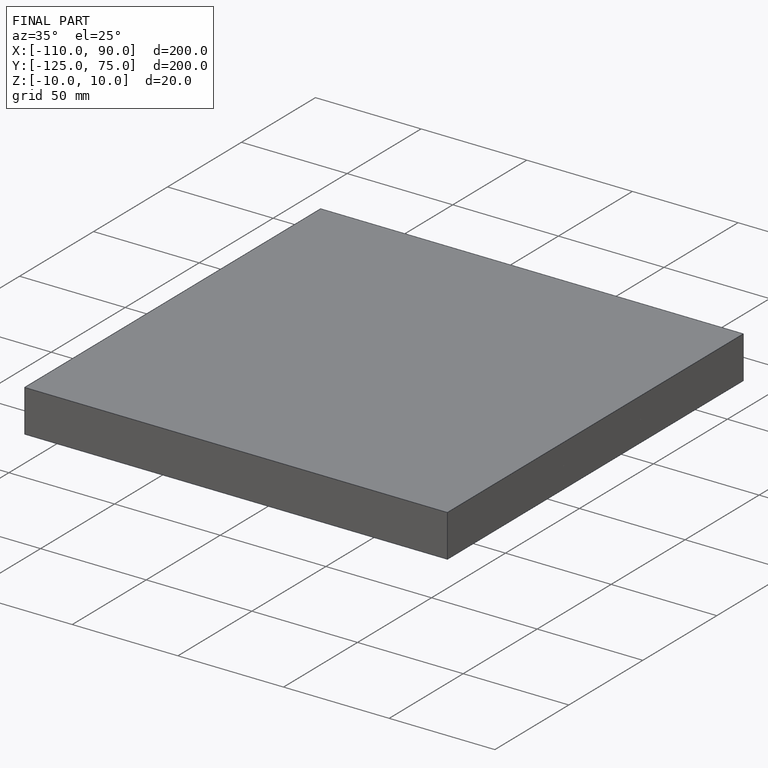
[diagram: finished part — iso view with bounding-box wireframe]
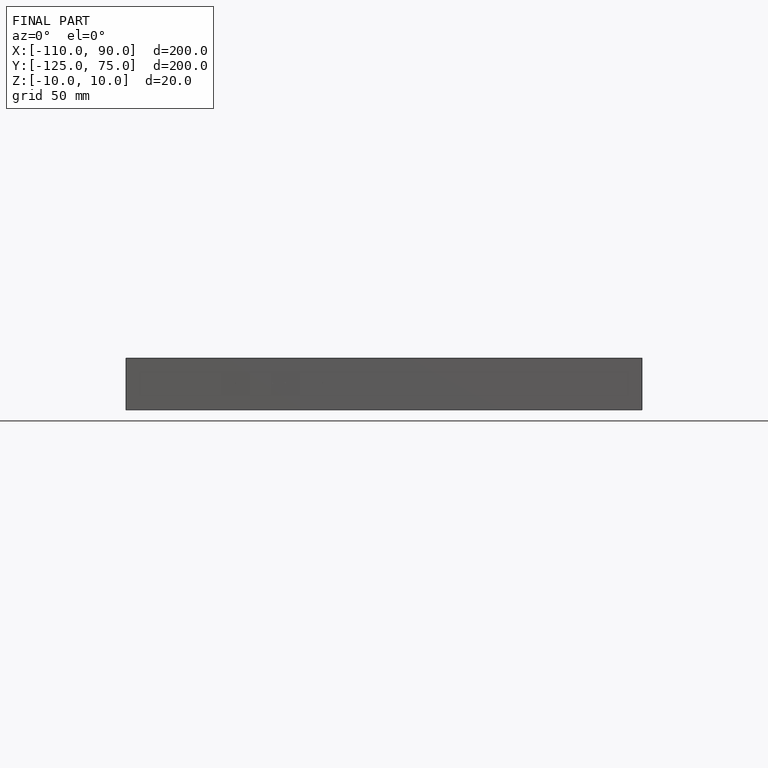
[diagram: finished part — front view with bounding-box wireframe]
